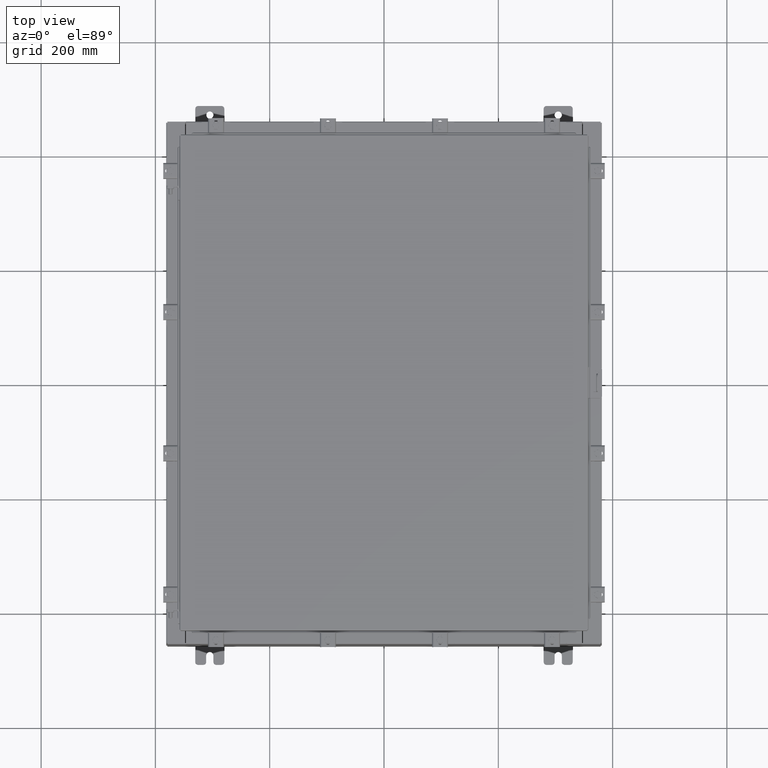
[diagram: clean part render]
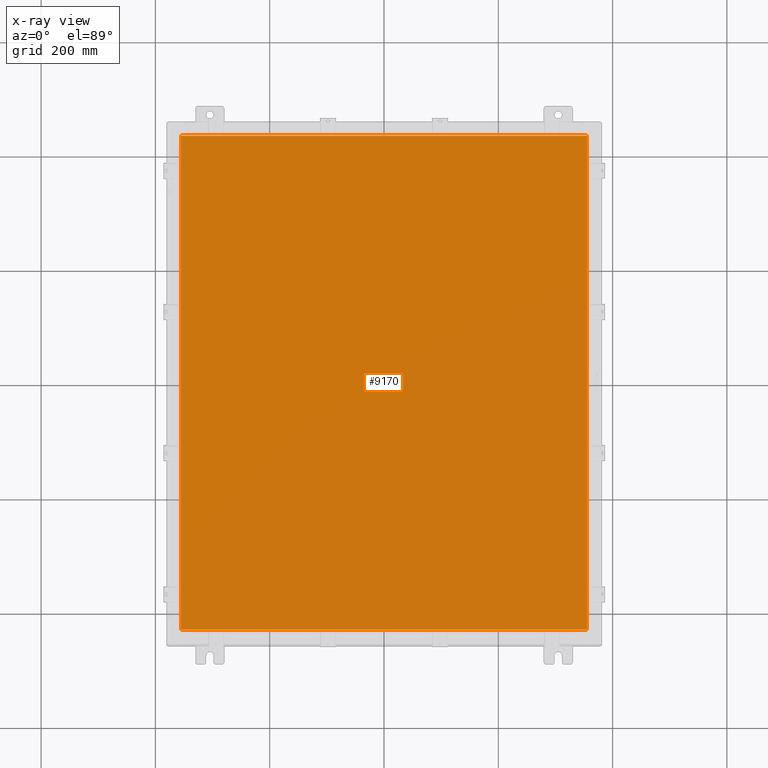
[diagram: x-ray — body ghosted, one internal face saturated and labeled with its STEP entity id]
A machine part, top view, then the same camera in x-ray: the body is ghosted and one INTERNAL B-rep face — a face not visible from any outside direction — is saturated and labeled: STEP entity #9170.
In plain terms, the highlighted planar face has unit normal (0, 0, -1).
Its self-contained STEP definition (entity closure, byte-faithful):
#362 = FACE_OUTER_BOUND ( 'NONE', #18873, .T. ) ;
#489 = CARTESIAN_POINT ( 'NONE',  ( 13.99029999999999600, 17.00629999999999600, -0.07469999999999910000 ) ) ;
#504 = LINE ( 'NONE', #18948, #20672 ) ;
#1346 = DIRECTION ( 'NONE',  ( 1.000000000000000000, -0.0000000000000000000, -0.0000000000000000000 ) ) ;
#1746 = CARTESIAN_POINT ( 'NONE',  ( 13.99029999999999800, 17.00629999999999600, -0.07470000000000000300 ) ) ;
#1796 = ORIENTED_EDGE ( 'NONE', *, *, #5021, .F. ) ;
#2071 = VERTEX_POINT ( 'NONE', #1746 ) ;
#2278 = EDGE_CURVE ( 'NONE', #2071, #18543, #23751, .T. ) ;
#2701 = CARTESIAN_POINT ( 'NONE',  ( 13.99029999999999800, -17.00630000000000700, -0.07470000000000019700 ) ) ;
#2750 = CARTESIAN_POINT ( 'NONE',  ( -13.99030000000000000, 17.00629999999999600, -0.07470000000000000300 ) ) ;
#3651 = ORIENTED_EDGE ( 'NONE', *, *, #16990, .F. ) ;
#4222 = CARTESIAN_POINT ( 'NONE',  ( -13.99030000000000000, -17.00630000000000300, -0.07470000000000000300 ) ) ;
#4302 = DIRECTION ( 'NONE',  ( -1.000000000000000000, -0.0000000000000000000, -0.0000000000000000000 ) ) ;
#5021 = EDGE_CURVE ( 'NONE', #10118, #8071, #7038, .T. ) ;
#5596 = PLANE ( 'NONE',  #21443 ) ;
#6903 = VECTOR ( 'NONE', #4302, 39.37007874015748100 ) ;
#7038 = LINE ( 'NONE', #10783, #16526 ) ;
#8071 = VERTEX_POINT ( 'NONE', #21775 ) ;
#8645 = VECTOR ( 'NONE', #14066, 39.37007874015748100 ) ;
#9170 = ADVANCED_FACE ( 'NONE', ( #362 ), #5596, .T. ) ;
#9239 = LINE ( 'NONE', #2701, #8645 ) ;
#9417 = DIRECTION ( 'NONE',  ( 0.0000000000000000000, 0.0000000000000000000, -1.000000000000000000 ) ) ;
#9530 = DIRECTION ( 'NONE',  ( 0.0000000000000000000, -1.000000000000000000, 0.0000000000000000000 ) ) ;
#10118 = VERTEX_POINT ( 'NONE', #4222 ) ;
#10783 = CARTESIAN_POINT ( 'NONE',  ( -13.99029999999999800, -17.00630000000000300, -0.07470000000000019700 ) ) ;
#10947 = ORIENTED_EDGE ( 'NONE', *, *, #14113, .F. ) ;
#11939 = ORIENTED_EDGE ( 'NONE', *, *, #2278, .F. ) ;
#13135 = CARTESIAN_POINT ( 'NONE',  ( 0.0000000000000000000, 0.0000000000000000000, -0.07470000000000000300 ) ) ;
#14066 = DIRECTION ( 'NONE',  ( 0.0000000000000000000, 1.000000000000000000, 0.0000000000000000000 ) ) ;
#14113 = EDGE_CURVE ( 'NONE', #8071, #2071, #9239, .T. ) ;
#16526 = VECTOR ( 'NONE', #1346, 39.37007874015748100 ) ;
#16990 = EDGE_CURVE ( 'NONE', #18543, #10118, #504, .T. ) ;
#18543 = VERTEX_POINT ( 'NONE', #2750 ) ;
#18873 = EDGE_LOOP ( 'NONE', ( #10947, #1796, #3651, #11939 ) ) ;
#18948 = CARTESIAN_POINT ( 'NONE',  ( -13.99030000000000000, 17.00630000000000000, -0.07470000000000019700 ) ) ;
#20672 = VECTOR ( 'NONE', #9530, 39.37007874015748100 ) ;
#21443 = AXIS2_PLACEMENT_3D ( 'NONE', #13135, #9417, #22660 ) ;
#21775 = CARTESIAN_POINT ( 'NONE',  ( 13.99029999999999800, -17.00630000000000300, -0.07470000000000000300 ) ) ;
#22660 = DIRECTION ( 'NONE',  ( -1.000000000000000000, 0.0000000000000000000, -0.0000000000000000000 ) ) ;
#23751 = LINE ( 'NONE', #489, #6903 ) ;